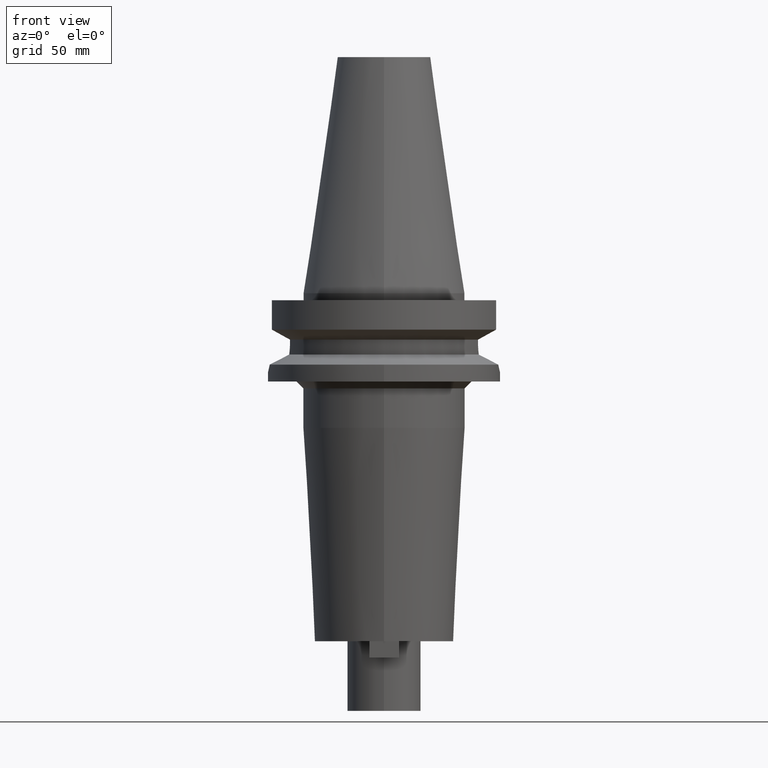
[diagram: clean part render]
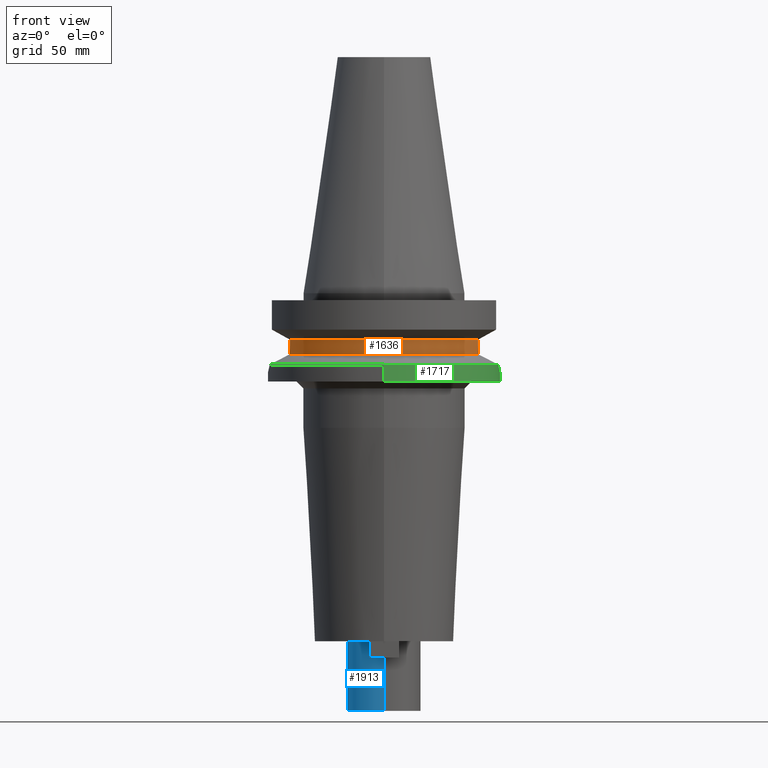
[diagram: same view with three faces highlighted in distinct colors, each labeled with its STEP entity id]
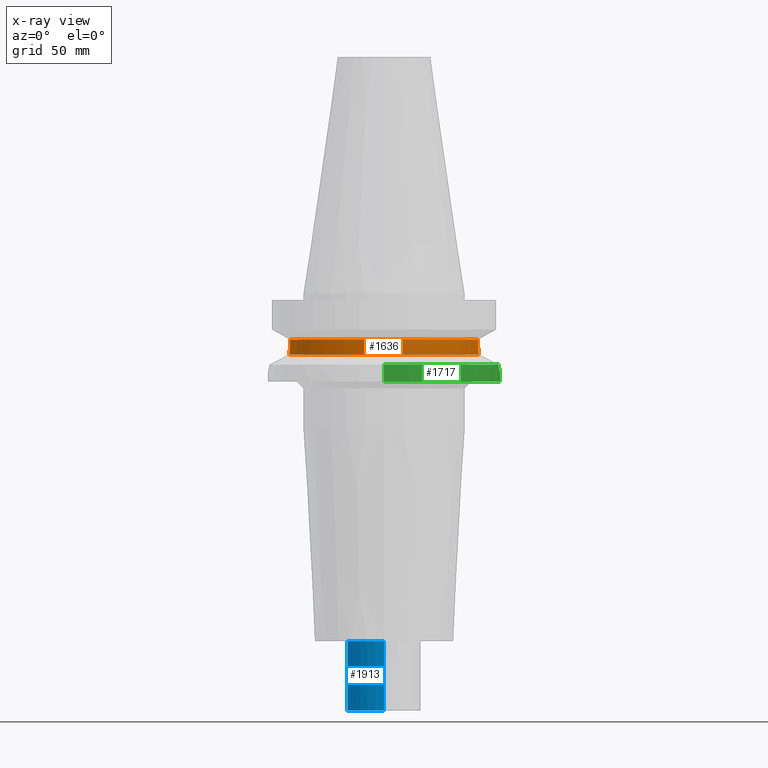
[diagram: x-ray of the same camera — body ghosted, the three highlighted faces saturated]
A machine part, front view with three faces highlighted in distinct colors.
The next image is the same camera in x-ray (body ghosted, the three faces saturated) — at least one of them is partly hidden behind the body in this view.
Their STEP definitions:

[orange] entity #1636 — the highlighted cylindrical surface (partial cylindrical patch) has radius 42.5 mm, axis along (0, 0, -1).
#293=CARTESIAN_POINT('',(-4.085052569294E1,-1.172538061688E1,
-2.640718074535E1));
#294=CARTESIAN_POINT('',(-4.077854084063E1,-1.197617154255E1,
-2.584782789043E1));
#295=CARTESIAN_POINT('',(-4.065471950575E1,-1.239074169376E1,
-2.471132221764E1));
#296=CARTESIAN_POINT('',(-4.053738432549E1,-1.276675421596E1,
-2.294138182735E1));
#297=CARTESIAN_POINT('',(-4.051083188482E1,-1.285E1,-2.175072945899E1));
#298=CARTESIAN_POINT('',(-4.051083188482E1,-1.285E1,-2.115E1));
#303=DIRECTION('',(-9.395584592292E-7,2.962048808703E-6,9.999999999952E-1));
#304=VECTOR('',#303,1.157154441309E0);
#305=CARTESIAN_POINT('',(-4.051083188482E1,-1.285E1,-2.115E1));
#306=LINE('',#305,#304);
#310=DIRECTION('',(-9.390344904619E-7,-2.960396942958E-6,-9.999999999952E-1));
#311=VECTOR('',#310,1.157154455979E0);
#312=CARTESIAN_POINT('',(4.051083297143E1,-1.284999657436E1,-1.999284554403E1));
#313=LINE('',#312,#311);
#317=CARTESIAN_POINT('',(4.051083188482E1,-1.285E1,-2.115E1));
#318=CARTESIAN_POINT('',(4.051083188482E1,-1.285E1,-2.175069585816E1));
#319=CARTESIAN_POINT('',(4.053738019969E1,-1.276676732570E1,-2.294130440814E1));
#320=CARTESIAN_POINT('',(4.065472022884E1,-1.239073952219E1,-2.471134008448E1));
#321=CARTESIAN_POINT('',(4.077854173820E1,-1.197616841546E1,-2.584783486495E1));
#322=CARTESIAN_POINT('',(4.085052569294E1,-1.172538061688E1,-2.640718074535E1));
#351=CARTESIAN_POINT('',(0.E0,0.E0,-2.640718074535E1));
#352=DIRECTION('',(0.E0,0.E0,1.E0));
#353=DIRECTION('',(-9.611888398338E-1,-2.758913086325E-1,0.E0));
#354=AXIS2_PLACEMENT_3D('',#351,#352,#353);
#359=CARTESIAN_POINT('',(0.E0,0.E0,-2.640718074535E1));
#360=DIRECTION('',(0.E0,0.E0,1.E0));
#361=DIRECTION('',(0.E0,-1.E0,0.E0));
#362=AXIS2_PLACEMENT_3D('',#359,#360,#361);
#1112=CARTESIAN_POINT('',(0.E0,1.006319759054E-14,-1.999281925465E1));
#1113=DIRECTION('',(0.E0,0.E0,-1.E0));
#1114=DIRECTION('',(9.531960443487E-1,-3.023529411765E-1,0.E0));
#1115=AXIS2_PLACEMENT_3D('',#1112,#1113,#1114);
#1120=CARTESIAN_POINT('',(0.E0,1.006319759054E-14,-1.999281925465E1));
#1121=DIRECTION('',(0.E0,0.E0,-1.E0));
#1122=DIRECTION('',(0.E0,-1.E0,0.E0));
#1123=AXIS2_PLACEMENT_3D('',#1120,#1121,#1122);
#1252=CARTESIAN_POINT('',(-4.051083188482E1,-1.285E1,-2.115E1));
#1253=CARTESIAN_POINT('',(-4.051083297203E1,-1.284999657245E1,
-1.999284555870E1));
#1254=VERTEX_POINT('',#1252);
#1255=VERTEX_POINT('',#1253);
#1258=VERTEX_POINT('',#293);
#1259=CARTESIAN_POINT('',(4.051083188482E1,-1.285E1,-1.999281925465E1));
#1260=CARTESIAN_POINT('',(0.E0,-4.25E1,-1.999281925465E1));
#1261=VERTEX_POINT('',#1259);
#1262=VERTEX_POINT('',#1260);
#1263=CARTESIAN_POINT('',(4.051083188482E1,-1.285E1,-2.115E1));
#1264=VERTEX_POINT('',#1263);
#1265=VERTEX_POINT('',#322);
#1266=CARTESIAN_POINT('',(0.E0,-4.25E1,-2.640718074535E1));
#1267=VERTEX_POINT('',#1266);
#1614=CARTESIAN_POINT('',(0.E0,2.643889974679E-14,1.1589E2));
#1615=DIRECTION('',(0.E0,0.E0,-1.E0));
#1616=DIRECTION('',(0.E0,-1.E0,0.E0));
#1617=AXIS2_PLACEMENT_3D('',#1614,#1615,#1616);
#1618=CYLINDRICAL_SURFACE('',#1617,4.25E1);
#1620=ORIENTED_EDGE('',*,*,#1619,.T.);
#1621=ORIENTED_EDGE('',*,*,#1601,.T.);
#1623=ORIENTED_EDGE('',*,*,#1622,.F.);
#1625=ORIENTED_EDGE('',*,*,#1624,.F.);
#1627=ORIENTED_EDGE('',*,*,#1626,.T.);
#1629=ORIENTED_EDGE('',*,*,#1628,.T.);
#1631=ORIENTED_EDGE('',*,*,#1630,.F.);
#1633=ORIENTED_EDGE('',*,*,#1632,.F.);
#1634=EDGE_LOOP('',(#1620,#1621,#1623,#1625,#1627,#1629,#1631,#1633));
#1635=FACE_OUTER_BOUND('',#1634,.F.);
#299=B_SPLINE_CURVE_WITH_KNOTS('',3,(#293,#294,#295,#296,#297,#298),
.UNSPECIFIED.,.F.,.F.,(4,1,1,4),(0.E0,3.333333333333E-1,6.666666666667E-1,1.E0),
.UNSPECIFIED.);
#323=B_SPLINE_CURVE_WITH_KNOTS('',3,(#317,#318,#319,#320,#321,#322),
.UNSPECIFIED.,.F.,.F.,(4,1,1,4),(0.E0,3.333333333333E-1,6.666666666667E-1,1.E0),
.UNSPECIFIED.);
#355=CIRCLE('',#354,4.25E1);
#363=CIRCLE('',#362,4.25E1);
#1116=CIRCLE('',#1115,4.25E1);
#1124=CIRCLE('',#1123,4.25E1);
#1601=EDGE_CURVE('',#1254,#1255,#306,.T.);
#1619=EDGE_CURVE('',#1258,#1254,#299,.T.);
#1622=EDGE_CURVE('',#1262,#1255,#1124,.T.);
#1624=EDGE_CURVE('',#1261,#1262,#1116,.T.);
#1626=EDGE_CURVE('',#1261,#1264,#313,.T.);
#1628=EDGE_CURVE('',#1264,#1265,#323,.T.);
#1630=EDGE_CURVE('',#1267,#1265,#363,.T.);
#1632=EDGE_CURVE('',#1258,#1267,#355,.T.);
#1636=ADVANCED_FACE('',(#1635),#1618,.T.);

[blue] entity #1913 — the highlighted cylindrical surface (partial cylindrical patch) has radius 15.875 mm, axis along (0, 0, -1).
#631=CARTESIAN_POINT('',(0.E0,2.643889974679E-14,-1.5E2));
#632=DIRECTION('',(0.E0,0.E0,-1.E0));
#633=DIRECTION('',(0.E0,-1.E0,0.E0));
#634=AXIS2_PLACEMENT_3D('',#631,#632,#633);
#667=DIRECTION('',(0.E0,0.E0,-1.E0));
#668=VECTOR('',#667,3.E1);
#669=CARTESIAN_POINT('',(0.E0,1.5875E1,-1.5E2));
#670=LINE('',#669,#668);
#674=DIRECTION('',(0.E0,0.E0,-1.E0));
#675=VECTOR('',#674,3.E1);
#676=CARTESIAN_POINT('',(0.E0,-1.5875E1,-1.5E2));
#677=LINE('',#676,#675);
#681=CARTESIAN_POINT('',(0.E0,2.643889974679E-14,-1.8E2));
#682=DIRECTION('',(0.E0,0.E0,1.E0));
#683=DIRECTION('',(0.E0,1.E0,0.E0));
#684=AXIS2_PLACEMENT_3D('',#681,#682,#683);
#1316=CARTESIAN_POINT('',(0.E0,1.5875E1,-1.5E2));
#1317=CARTESIAN_POINT('',(0.E0,-1.5875E1,-1.5E2));
#1318=VERTEX_POINT('',#1316);
#1319=VERTEX_POINT('',#1317);
#1336=CARTESIAN_POINT('',(0.E0,1.5875E1,-1.8E2));
#1337=VERTEX_POINT('',#1336);
#1338=CARTESIAN_POINT('',(0.E0,-1.5875E1,-1.8E2));
#1339=VERTEX_POINT('',#1338);
#1901=CARTESIAN_POINT('',(0.E0,2.643889974679E-14,1.1589E2));
#1902=DIRECTION('',(0.E0,0.E0,-1.E0));
#1903=DIRECTION('',(0.E0,-1.E0,0.E0));
#1904=AXIS2_PLACEMENT_3D('',#1901,#1902,#1903);
#1905=CYLINDRICAL_SURFACE('',#1904,1.5875E1);
#1906=ORIENTED_EDGE('',*,*,#1891,.F.);
#1907=ORIENTED_EDGE('',*,*,#1861,.F.);
#1908=ORIENTED_EDGE('',*,*,#1895,.T.);
#1910=ORIENTED_EDGE('',*,*,#1909,.F.);
#1911=EDGE_LOOP('',(#1906,#1907,#1908,#1910));
#1912=FACE_OUTER_BOUND('',#1911,.F.);
#635=CIRCLE('',#634,1.5875E1);
#685=CIRCLE('',#684,1.5875E1);
#1861=EDGE_CURVE('',#1319,#1318,#635,.T.);
#1891=EDGE_CURVE('',#1318,#1337,#670,.T.);
#1895=EDGE_CURVE('',#1319,#1339,#677,.T.);
#1909=EDGE_CURVE('',#1337,#1339,#685,.T.);
#1913=ADVANCED_FACE('',(#1912),#1905,.T.);

[green] entity #1717 — the highlighted cylindrical surface (partial cylindrical patch) has radius 50 mm, axis along (0, 0, -1).
#372=CARTESIAN_POINT('',(4.926250064874E1,-8.556052234130E0,-3.073730776427E1));
#377=CARTESIAN_POINT('',(0.E0,0.E0,-3.073730776427E1));
#378=DIRECTION('',(0.E0,0.E0,-1.E0));
#379=DIRECTION('',(9.852500129747E-1,-1.711210446826E-1,0.E0));
#380=AXIS2_PLACEMENT_3D('',#377,#378,#379);
#407=CARTESIAN_POINT('',(4.926250064874E1,-8.556052234130E0,-3.073730776427E1));
#408=CARTESIAN_POINT('',(4.938280587022E1,-7.863380440027E0,-3.135547255017E1));
#409=CARTESIAN_POINT('',(4.960873050601E1,-6.389807667420E0,-3.240547910261E1));
#410=CARTESIAN_POINT('',(4.986717843968E1,-3.931784351130E0,-3.348098114250E1));
#411=CARTESIAN_POINT('',(5.000685954137E1,-1.304822940105E0,-3.402692166947E1));
#412=CARTESIAN_POINT('',(5.000469881661E1,1.379293205270E0,-3.401863923352E1));
#413=CARTESIAN_POINT('',(4.986219910903E1,3.989788446321E0,-3.346100448536E1));
#414=CARTESIAN_POINT('',(4.960407447946E1,6.422234520376E0,-3.238473950822E1));
#415=CARTESIAN_POINT('',(4.938093604880E1,7.874146161948E0,-3.134586483950E1));
#416=CARTESIAN_POINT('',(4.926250064874E1,8.556052234130E0,-3.073730776427E1));
#421=DIRECTION('',(0.E0,2.152361642122E-14,-1.E0));
#422=VECTOR('',#421,7.262692235730E0);
#423=CARTESIAN_POINT('',(0.E0,5.E1,-3.073730776427E1));
#424=LINE('',#423,#422);
#446=CARTESIAN_POINT('',(0.E0,0.E0,-3.073730776427E1));
#447=DIRECTION('',(0.E0,0.E0,-1.E0));
#448=DIRECTION('',(0.E0,1.E0,0.E0));
#449=AXIS2_PLACEMENT_3D('',#446,#447,#448);
#494=DIRECTION('',(0.E0,-2.250196262218E-14,-1.E0));
#495=VECTOR('',#494,7.262692235730E0);
#496=CARTESIAN_POINT('',(0.E0,-5.E1,-3.073730776427E1));
#497=LINE('',#496,#495);
#509=CARTESIAN_POINT('',(0.E0,2.643889974679E-14,-3.8E1));
#510=DIRECTION('',(0.E0,0.E0,1.E0));
#511=DIRECTION('',(0.E0,-1.E0,0.E0));
#512=AXIS2_PLACEMENT_3D('',#509,#510,#511);
#1283=VERTEX_POINT('',#372);
#1284=CARTESIAN_POINT('',(1.776356839400E-14,-5.E1,-3.073730776427E1));
#1285=VERTEX_POINT('',#1284);
#1286=CARTESIAN_POINT('',(0.E0,5.E1,-3.073730776427E1));
#1287=VERTEX_POINT('',#1286);
#1288=CARTESIAN_POINT('',(4.926250064874E1,8.556052234129E0,-3.073730776427E1));
#1289=VERTEX_POINT('',#1288);
#1296=CARTESIAN_POINT('',(0.E0,5.E1,-3.8E1));
#1297=VERTEX_POINT('',#1296);
#1298=CARTESIAN_POINT('',(0.E0,-5.E1,-3.8E1));
#1299=VERTEX_POINT('',#1298);
#1700=CARTESIAN_POINT('',(0.E0,2.643889974679E-14,1.1589E2));
#1701=DIRECTION('',(0.E0,0.E0,-1.E0));
#1702=DIRECTION('',(0.E0,-1.E0,0.E0));
#1703=AXIS2_PLACEMENT_3D('',#1700,#1701,#1702);
#1704=CYLINDRICAL_SURFACE('',#1703,5.E1);
#1705=ORIENTED_EDGE('',*,*,#1681,.T.);
#1707=ORIENTED_EDGE('',*,*,#1706,.F.);
#1709=ORIENTED_EDGE('',*,*,#1708,.T.);
#1711=ORIENTED_EDGE('',*,*,#1710,.F.);
#1713=ORIENTED_EDGE('',*,*,#1712,.F.);
#1714=ORIENTED_EDGE('',*,*,#1669,.F.);
#1715=EDGE_LOOP('',(#1705,#1707,#1709,#1711,#1713,#1714));
#1716=FACE_OUTER_BOUND('',#1715,.F.);
#381=CIRCLE('',#380,5.E1);
#417=B_SPLINE_CURVE_WITH_KNOTS('',3,(#407,#408,#409,#410,#411,#412,#413,#414,
#415,#416),.UNSPECIFIED.,.F.,.F.,(4,1,1,1,1,1,1,4),(0.E0,1.428571428571E-1,
2.857142857143E-1,4.285714285714E-1,5.714285714286E-1,7.142857142857E-1,
8.571428571429E-1,1.E0),.UNSPECIFIED.);
#450=CIRCLE('',#449,5.E1);
#513=CIRCLE('',#512,5.E1);
#1669=EDGE_CURVE('',#1283,#1285,#381,.T.);
#1681=EDGE_CURVE('',#1283,#1289,#417,.T.);
#1706=EDGE_CURVE('',#1287,#1289,#450,.T.);
#1708=EDGE_CURVE('',#1287,#1297,#424,.T.);
#1710=EDGE_CURVE('',#1299,#1297,#513,.T.);
#1712=EDGE_CURVE('',#1285,#1299,#497,.T.);
#1717=ADVANCED_FACE('',(#1716),#1704,.T.);